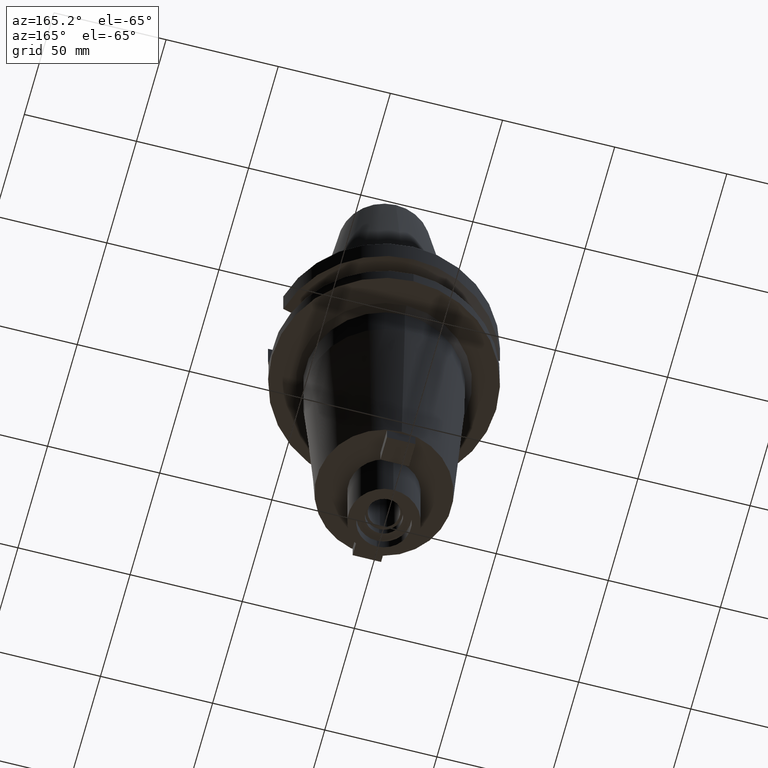
[diagram: clean part render]
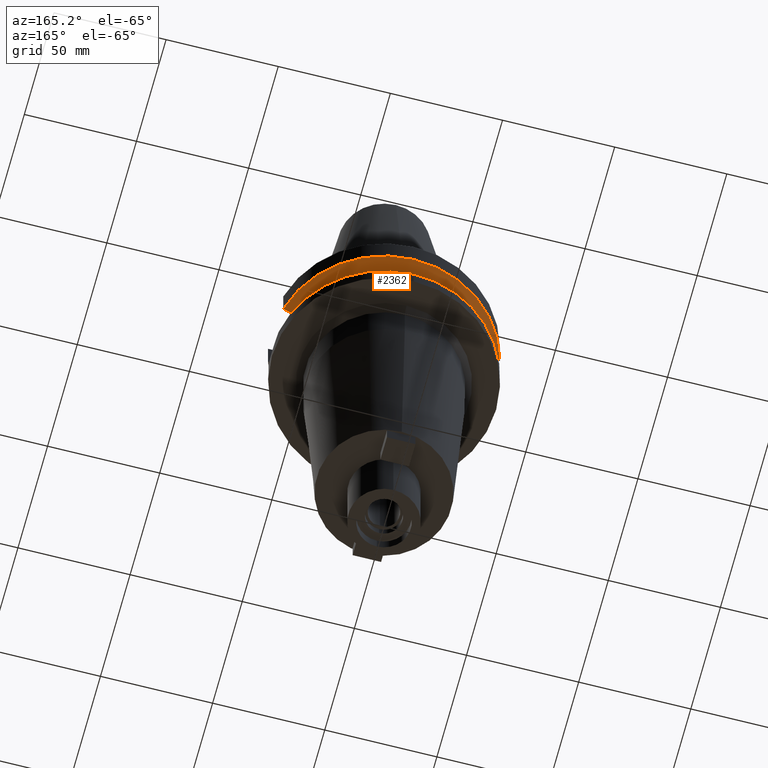
[diagram: same view with one face highlighted and labeled with its STEP entity id]
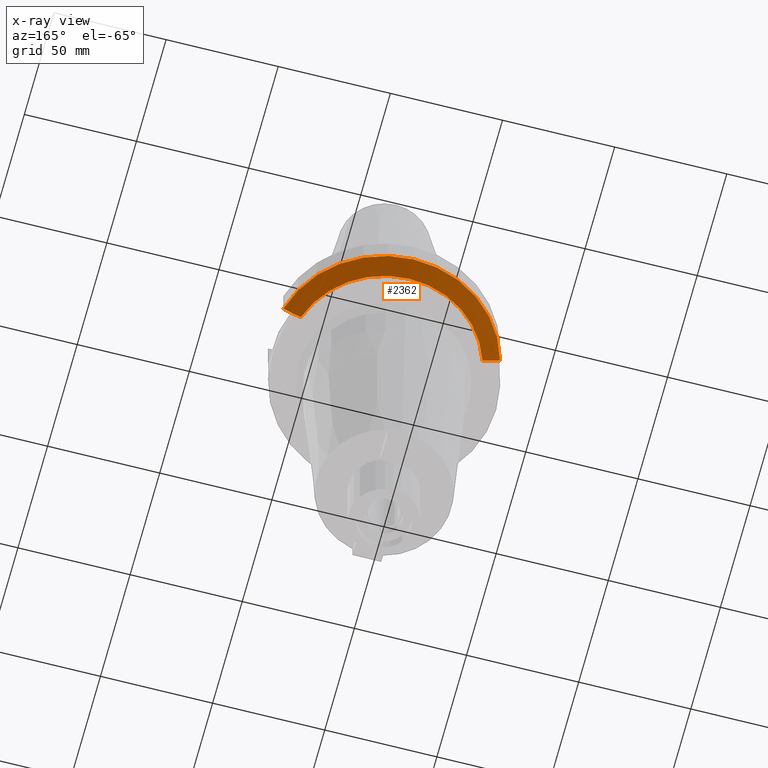
[diagram: x-ray of the same camera — body ghosted, the highlighted face saturated]
A machine part, auxiliary view. The second image highlights one B-rep face of the part: STEP entity #2362.
The next image is the same camera in x-ray: the body ghosted, the highlighted face saturated — about 0% of this face is hidden behind the body in this view.
In plain terms, the highlighted conical surface has half-angle 60 deg.
Its self-contained STEP definition (entity closure, byte-faithful):
#1046=CARTESIAN_POINT('',(4.832056912815E1,1.285000385726E1,-1.566265768273E1));
#1047=CARTESIAN_POINT('',(4.745408729214E1,1.285000385726E1,-1.614611802343E1));
#1048=CARTESIAN_POINT('',(4.572065044666E1,1.284999774294E1,-1.711204883216E1));
#1049=CARTESIAN_POINT('',(4.311729623625E1,1.285000211381E1,-1.855526471604E1));
#1050=CARTESIAN_POINT('',(4.138011668009E1,1.284999657247E1,-1.951445436178E1));
#1051=CARTESIAN_POINT('',(4.051083297203E1,1.284999657247E1,-1.999284555852E1));
#1156=CARTESIAN_POINT('',(-4.051083297141E1,1.284999657443E1,
-1.999284554354E1));
#1157=CARTESIAN_POINT('',(-4.138011667034E1,1.284999657443E1,
-1.951445435184E1));
#1158=CARTESIAN_POINT('',(-4.311729628375E1,1.285000211307E1,
-1.855526479721E1));
#1159=CARTESIAN_POINT('',(-4.572065049660E1,1.284999774261E1,
-1.711204891850E1));
#1160=CARTESIAN_POINT('',(-4.745408728479E1,1.285000385852E1,
-1.614611801600E1));
#1161=CARTESIAN_POINT('',(-4.832056912781E1,1.285000385852E1,
-1.566265767139E1));
#1166=CARTESIAN_POINT('',(0.E0,1.006319759054E-14,-1.999281925465E1));
#1167=DIRECTION('',(0.E0,0.E0,-1.E0));
#1168=DIRECTION('',(-9.531960443487E-1,3.023529411765E-1,0.E0));
#1169=AXIS2_PLACEMENT_3D('',#1166,#1167,#1168);
#1174=CARTESIAN_POINT('',(0.E0,1.006319759054E-14,-1.999281925465E1));
#1175=DIRECTION('',(0.E0,0.E0,-1.E0));
#1176=DIRECTION('',(0.E0,1.E0,0.E0));
#1177=AXIS2_PLACEMENT_3D('',#1174,#1175,#1176);
#1182=CARTESIAN_POINT('',(0.E0,1.006319759054E-14,-1.566269223573E1));
#1183=DIRECTION('',(0.E0,0.E0,1.E0));
#1184=DIRECTION('',(9.664114030784E-1,2.57E-1,0.E0));
#1185=AXIS2_PLACEMENT_3D('',#1182,#1183,#1184);
#1190=CARTESIAN_POINT('',(0.E0,1.006319759054E-14,-1.566269223573E1));
#1191=DIRECTION('',(0.E0,0.E0,1.E0));
#1192=DIRECTION('',(0.E0,1.E0,0.E0));
#1193=AXIS2_PLACEMENT_3D('',#1190,#1191,#1192);
#1275=CARTESIAN_POINT('',(4.051083297203E1,1.284999657247E1,-1.999284555852E1));
#1276=VERTEX_POINT('',#1275);
#1277=CARTESIAN_POINT('',(-4.051083188482E1,1.285E1,-1.999281925465E1));
#1278=CARTESIAN_POINT('',(0.E0,4.25E1,-1.999281925465E1));
#1279=VERTEX_POINT('',#1277);
#1280=VERTEX_POINT('',#1278);
#1387=VERTEX_POINT('',#1161);
#1388=VERTEX_POINT('',#1046);
#1389=CARTESIAN_POINT('',(0.E0,5.E1,-1.566269223573E1));
#1390=VERTEX_POINT('',#1389);
#2349=CARTESIAN_POINT('',(0.E0,1.006319759054E-14,-1.782775574519E1));
#2350=DIRECTION('',(0.E0,0.E0,1.E0));
#2351=DIRECTION('',(0.E0,1.E0,0.E0));
#2352=AXIS2_PLACEMENT_3D('',#2349,#2350,#2351);
#2353=CONICAL_SURFACE('',#2352,4.625E1,6.E1);
#2354=ORIENTED_EDGE('',*,*,#2340,.F.);
#2355=ORIENTED_EDGE('',*,*,#2233,.T.);
#2356=ORIENTED_EDGE('',*,*,#2231,.T.);
#2357=ORIENTED_EDGE('',*,*,#2252,.F.);
#2358=ORIENTED_EDGE('',*,*,#2326,.T.);
#2359=ORIENTED_EDGE('',*,*,#2324,.T.);
#2360=EDGE_LOOP('',(#2354,#2355,#2356,#2357,#2358,#2359));
#2361=FACE_OUTER_BOUND('',#2360,.F.);
#1052=B_SPLINE_CURVE_WITH_KNOTS('',3,(#1046,#1047,#1048,#1049,#1050,#1051),
.UNSPECIFIED.,.F.,.F.,(4,1,1,4),(0.E0,3.333333333333E-1,6.666666666667E-1,1.E0),
.UNSPECIFIED.);
#1162=B_SPLINE_CURVE_WITH_KNOTS('',3,(#1156,#1157,#1158,#1159,#1160,#1161),
.UNSPECIFIED.,.F.,.F.,(4,1,1,4),(0.E0,3.333333333333E-1,6.666666666667E-1,1.E0),
.UNSPECIFIED.);
#1170=CIRCLE('',#1169,4.25E1);
#1178=CIRCLE('',#1177,4.25E1);
#1186=CIRCLE('',#1185,5.E1);
#1194=CIRCLE('',#1193,5.E1);
#2231=EDGE_CURVE('',#1280,#1276,#1178,.T.);
#2233=EDGE_CURVE('',#1279,#1280,#1170,.T.);
#2252=EDGE_CURVE('',#1388,#1276,#1052,.T.);
#2324=EDGE_CURVE('',#1390,#1387,#1194,.T.);
#2326=EDGE_CURVE('',#1388,#1390,#1186,.T.);
#2340=EDGE_CURVE('',#1279,#1387,#1162,.T.);
#2362=ADVANCED_FACE('',(#2361),#2353,.T.);